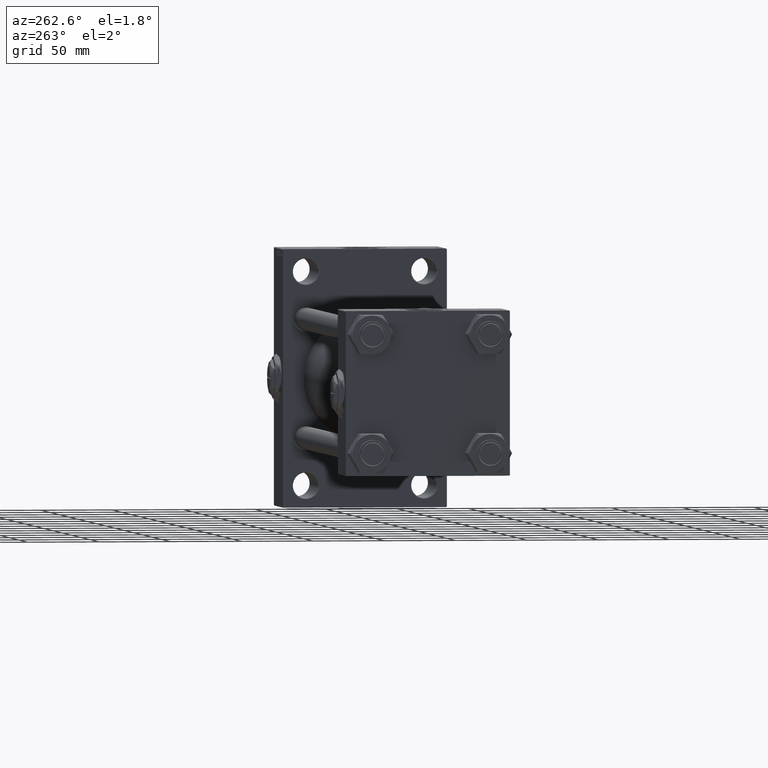
[diagram: clean part render]
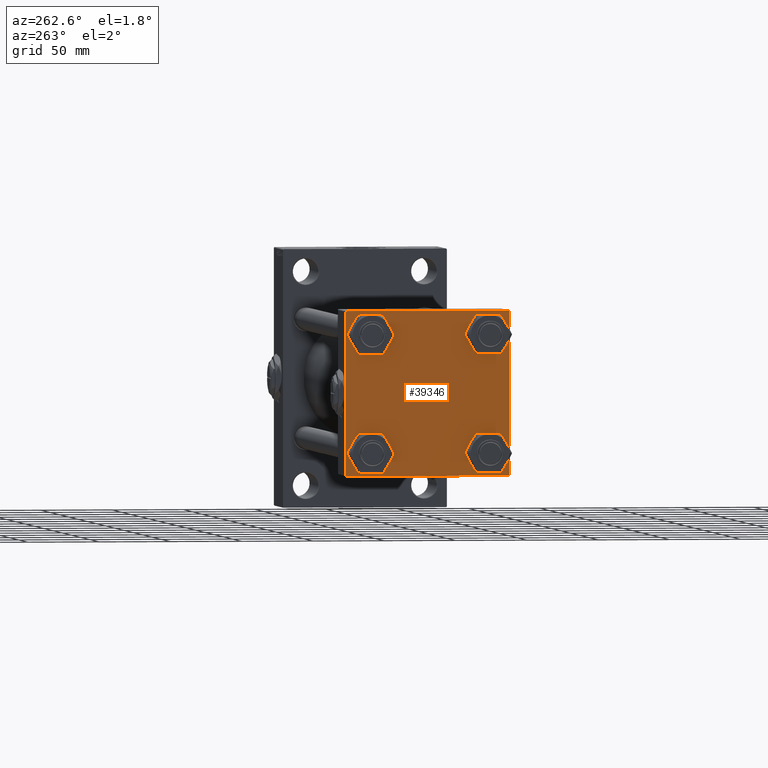
[diagram: same view with one face highlighted and labeled with its STEP entity id]
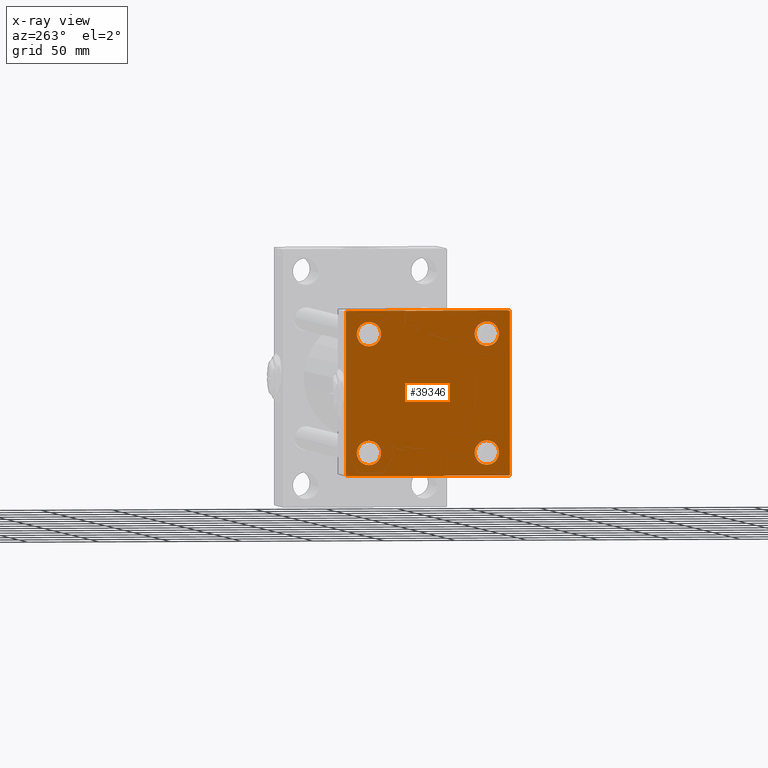
[diagram: x-ray of the same camera — body ghosted, the highlighted face saturated]
A machine part, auxiliary view. The second image highlights one B-rep face of the part: STEP entity #39346.
The next image is the same camera in x-ray: the body ghosted, the highlighted face saturated — about 0% of this face is hidden behind the body in this view.
In plain terms, the highlighted planar face has unit normal (-1, 0, 0).
Its self-contained STEP definition (entity closure, byte-faithful):
#49 = CARTESIAN_POINT ( 'NONE',  ( 0.000000000000000000, 57.24999999999922551, 57.25000000000081712 ) ) ;
#82 = VERTEX_POINT ( 'NONE', #12409 ) ;
#601 = CARTESIAN_POINT ( 'NONE',  ( 0.000000000000000000, 57.49999999999999289, 57.00000000000003553 ) ) ;
#662 = EDGE_CURVE ( 'NONE', #23062, #33924, #25557, .T. ) ;
#837 = DIRECTION ( 'NONE',  ( -0.000000000000000000, 0.7071067811865376918, 0.7071067811865573427 ) ) ;
#1007 = CARTESIAN_POINT ( 'NONE',  ( 0.000000000000000000, -57.50000000000000711, 57.49999999999999289 ) ) ;
#2153 = EDGE_LOOP ( 'NONE', ( #42011, #26590 ) ) ;
#2693 = VECTOR ( 'NONE', #36406, 1000.000000000000000 ) ;
#3112 = CARTESIAN_POINT ( 'NONE',  ( 0.000000000000000000, -57.00000000000003553, 57.49999999999999289 ) ) ;
#3179 = AXIS2_PLACEMENT_3D ( 'NONE', #24660, #27955, #17353 ) ;
#3202 = EDGE_CURVE ( 'NONE', #13354, #49717, #42679, .T. ) ;
#4260 = ORIENTED_EDGE ( 'NONE', *, *, #662, .T. ) ;
#4706 = PLANE ( 'NONE',  #23695 ) ;
#4889 = CARTESIAN_POINT ( 'NONE',  ( 0.000000000000000000, 57.25000000000081712, -57.24999999999922551 ) ) ;
#5319 = EDGE_CURVE ( 'NONE', #40228, #49717, #29425, .T. ) ;
#6830 = ORIENTED_EDGE ( 'NONE', *, *, #18655, .T. ) ;
#7414 = AXIS2_PLACEMENT_3D ( 'NONE', #44572, #10039, #40794 ) ;
#7602 = VECTOR ( 'NONE', #837, 1000.000000000000114 ) ;
#7765 = DIRECTION ( 'NONE',  ( 1.000000000000000000, -0.000000000000000000, 0.000000000000000000 ) ) ;
#8477 = EDGE_LOOP ( 'NONE', ( #37095, #28863, #4260, #6830, #36881, #37893, #32561, #49737 ) ) ;
#8502 = FACE_BOUND ( 'NONE', #39062, .T. ) ;
#8508 = EDGE_LOOP ( 'NONE', ( #44011, #32065 ) ) ;
#8606 = DIRECTION ( 'NONE',  ( 0.000000000000000000, 0.000000000000000000, 1.000000000000000000 ) ) ;
#9120 = ORIENTED_EDGE ( 'NONE', *, *, #24588, .T. ) ;
#10039 = DIRECTION ( 'NONE',  ( 1.000000000000000000, -0.000000000000000000, 0.000000000000000000 ) ) ;
#10225 = AXIS2_PLACEMENT_3D ( 'NONE', #25800, #14467, #29854 ) ;
#11226 = DIRECTION ( 'NONE',  ( 0.000000000000000000, 0.000000000000000000, 1.000000000000000000 ) ) ;
#11793 = CARTESIAN_POINT ( 'NONE',  ( 0.000000000000000000, -41.34999999999998721, -32.85000000000001563 ) ) ;
#12055 = FACE_BOUND ( 'NONE', #34598, .T. ) ;
#12189 = CARTESIAN_POINT ( 'NONE',  ( 0.000000000000000000, 41.34999999999999432, 41.35000000000000142 ) ) ;
#12301 = EDGE_CURVE ( 'NONE', #13354, #82, #20179, .T. ) ;
#12409 = CARTESIAN_POINT ( 'NONE',  ( 0.000000000000000000, -57.50000000000000711, -57.00000000000000711 ) ) ;
#12942 = CIRCLE ( 'NONE', #19401, 8.499999999999992895 ) ;
#12951 = VERTEX_POINT ( 'NONE', #45029 ) ;
#13193 = EDGE_CURVE ( 'NONE', #48087, #23062, #20540, .T. ) ;
#13222 = CARTESIAN_POINT ( 'NONE',  ( 0.000000000000000000, 57.49999999999999289, -57.49999999999999289 ) ) ;
#13354 = VERTEX_POINT ( 'NONE', #15645 ) ;
#13368 = CARTESIAN_POINT ( 'NONE',  ( 0.000000000000000000, 41.34999999999999432, 49.85000000000000142 ) ) ;
#14467 = DIRECTION ( 'NONE',  ( 1.000000000000000000, -0.000000000000000000, 0.000000000000000000 ) ) ;
#15212 = CARTESIAN_POINT ( 'NONE',  ( 0.000000000000000000, -41.34999999999998721, 32.85000000000001563 ) ) ;
#15435 = DIRECTION ( 'NONE',  ( 0.000000000000000000, 0.7071067811865573427, -0.7071067811865376918 ) ) ;
#15645 = CARTESIAN_POINT ( 'NONE',  ( 0.000000000000000000, -57.50000000000000711, 57.00000000000000711 ) ) ;
#15855 = CIRCLE ( 'NONE', #10225, 8.499999999999992895 ) ;
#16071 = CARTESIAN_POINT ( 'NONE',  ( 0.000000000000000000, 0.000000000000000000, 0.000000000000000000 ) ) ;
#16480 = ORIENTED_EDGE ( 'NONE', *, *, #18651, .T. ) ;
#16649 = CIRCLE ( 'NONE', #19850, 8.499999999999992895 ) ;
#17353 = DIRECTION ( 'NONE',  ( 0.000000000000000000, 0.000000000000000000, 1.000000000000000000 ) ) ;
#18334 = VECTOR ( 'NONE', #20286, 1000.000000000000114 ) ;
#18651 = EDGE_CURVE ( 'NONE', #12951, #23550, #49865, .T. ) ;
#18655 = EDGE_CURVE ( 'NONE', #33924, #82, #32732, .T. ) ;
#18741 = VERTEX_POINT ( 'NONE', #31428 ) ;
#18980 = CARTESIAN_POINT ( 'NONE',  ( 0.000000000000000000, 57.49999999999999289, 57.50000000000000711 ) ) ;
#19227 = LINE ( 'NONE', #49, #41762 ) ;
#19380 = VERTEX_POINT ( 'NONE', #24413 ) ;
#19401 = AXIS2_PLACEMENT_3D ( 'NONE', #12189, #44415, #40389 ) ;
#19850 = AXIS2_PLACEMENT_3D ( 'NONE', #42473, #31395, #11226 ) ;
#20114 = CARTESIAN_POINT ( 'NONE',  ( 0.000000000000000000, 41.34999999999999432, 41.35000000000000142 ) ) ;
#20175 = EDGE_CURVE ( 'NONE', #38536, #18741, #23396, .T. ) ;
#20179 = LINE ( 'NONE', #1007, #46444 ) ;
#20187 = AXIS2_PLACEMENT_3D ( 'NONE', #41953, #49264, #26830 ) ;
#20286 = DIRECTION ( 'NONE',  ( -0.000000000000000000, -0.7071067811865376918, -0.7071067811865573427 ) ) ;
#20355 = FACE_BOUND ( 'NONE', #2153, .T. ) ;
#20540 = LINE ( 'NONE', #4889, #18334 ) ;
#20712 = CARTESIAN_POINT ( 'NONE',  ( 0.000000000000000000, -41.34999999999998721, -41.35000000000000853 ) ) ;
#21360 = DIRECTION ( 'NONE',  ( 0.000000000000000000, -1.000000000000000000, -1.206764157201257045E-16 ) ) ;
#21450 = EDGE_CURVE ( 'NONE', #23166, #38460, #38853, .T. ) ;
#21760 = AXIS2_PLACEMENT_3D ( 'NONE', #20712, #36086, #8606 ) ;
#23062 = VERTEX_POINT ( 'NONE', #36910 ) ;
#23166 = VERTEX_POINT ( 'NONE', #15212 ) ;
#23396 = CIRCLE ( 'NONE', #21760, 8.499999999999992895 ) ;
#23550 = VERTEX_POINT ( 'NONE', #28447 ) ;
#23695 = AXIS2_PLACEMENT_3D ( 'NONE', #16071, #31463, #46797 ) ;
#24413 = CARTESIAN_POINT ( 'NONE',  ( 0.000000000000000000, 41.34999999999999432, 32.85000000000000853 ) ) ;
#24588 = EDGE_CURVE ( 'NONE', #23550, #12951, #34645, .T. ) ;
#24660 = CARTESIAN_POINT ( 'NONE',  ( 0.000000000000000000, 41.34999999999999432, -41.35000000000000142 ) ) ;
#25557 = LINE ( 'NONE', #13222, #2693 ) ;
#25800 = CARTESIAN_POINT ( 'NONE',  ( 0.000000000000000000, -41.34999999999998721, 41.35000000000000853 ) ) ;
#26590 = ORIENTED_EDGE ( 'NONE', *, *, #21450, .T. ) ;
#26830 = DIRECTION ( 'NONE',  ( 0.000000000000000000, 0.000000000000000000, 1.000000000000000000 ) ) ;
#27347 = VECTOR ( 'NONE', #48085, 1000.000000000000114 ) ;
#27644 = ORIENTED_EDGE ( 'NONE', *, *, #32091, .T. ) ;
#27681 = DIRECTION ( 'NONE',  ( 0.000000000000000000, 0.000000000000000000, 1.000000000000000000 ) ) ;
#27955 = DIRECTION ( 'NONE',  ( 1.000000000000000000, -0.000000000000000000, 0.000000000000000000 ) ) ;
#28110 = EDGE_CURVE ( 'NONE', #49512, #19380, #12942, .T. ) ;
#28447 = CARTESIAN_POINT ( 'NONE',  ( 0.000000000000000000, 41.34999999999999432, -49.85000000000000142 ) ) ;
#28863 = ORIENTED_EDGE ( 'NONE', *, *, #13193, .T. ) ;
#29425 = LINE ( 'NONE', #40015, #40662 ) ;
#29854 = DIRECTION ( 'NONE',  ( 0.000000000000000000, 0.000000000000000000, 1.000000000000000000 ) ) ;
#30498 = EDGE_CURVE ( 'NONE', #47128, #48087, #41902, .T. ) ;
#31395 = DIRECTION ( 'NONE',  ( 1.000000000000000000, -0.000000000000000000, 0.000000000000000000 ) ) ;
#31428 = CARTESIAN_POINT ( 'NONE',  ( 0.000000000000000000, -41.34999999999998721, -49.85000000000000853 ) ) ;
#31463 = DIRECTION ( 'NONE',  ( -1.000000000000000000, 0.000000000000000000, -0.000000000000000000 ) ) ;
#32065 = ORIENTED_EDGE ( 'NONE', *, *, #45430, .T. ) ;
#32091 = EDGE_CURVE ( 'NONE', #19380, #49512, #49269, .T. ) ;
#32561 = ORIENTED_EDGE ( 'NONE', *, *, #5319, .F. ) ;
#32732 = LINE ( 'NONE', #40038, #27347 ) ;
#33486 = CARTESIAN_POINT ( 'NONE',  ( 0.000000000000000000, -41.34999999999998721, 49.85000000000000853 ) ) ;
#33924 = VERTEX_POINT ( 'NONE', #42390 ) ;
#34001 = AXIS2_PLACEMENT_3D ( 'NONE', #20114, #7765, #27681 ) ;
#34598 = EDGE_LOOP ( 'NONE', ( #45626, #27644 ) ) ;
#34645 = CIRCLE ( 'NONE', #20187, 8.499999999999992895 ) ;
#35552 = VECTOR ( 'NONE', #49711, 1000.000000000000000 ) ;
#36086 = DIRECTION ( 'NONE',  ( 1.000000000000000000, -0.000000000000000000, 0.000000000000000000 ) ) ;
#36406 = DIRECTION ( 'NONE',  ( 0.000000000000000000, -1.000000000000000000, -1.206764157201257045E-16 ) ) ;
#36881 = ORIENTED_EDGE ( 'NONE', *, *, #12301, .F. ) ;
#36910 = CARTESIAN_POINT ( 'NONE',  ( 0.000000000000000000, 57.00000000000002132, -57.49999999999999289 ) ) ;
#37095 = ORIENTED_EDGE ( 'NONE', *, *, #30498, .T. ) ;
#37893 = ORIENTED_EDGE ( 'NONE', *, *, #3202, .T. ) ;
#38460 = VERTEX_POINT ( 'NONE', #33486 ) ;
#38536 = VERTEX_POINT ( 'NONE', #11793 ) ;
#38853 = CIRCLE ( 'NONE', #7414, 8.499999999999992895 ) ;
#39062 = EDGE_LOOP ( 'NONE', ( #16480, #9120 ) ) ;
#39080 = CARTESIAN_POINT ( 'NONE',  ( 0.000000000000000000, 57.00000000000000711, 57.50000000000000711 ) ) ;
#39083 = DIRECTION ( 'NONE',  ( 0.000000000000000000, 0.000000000000000000, -1.000000000000000000 ) ) ;
#39346 = ADVANCED_FACE ( 'NONE', ( #20355, #39509, #8502, #12055, #39753 ), #4706, .T. ) ;
#39509 = FACE_BOUND ( 'NONE', #8508, .T. ) ;
#39753 = FACE_OUTER_BOUND ( 'NONE', #8477, .T. ) ;
#40015 = CARTESIAN_POINT ( 'NONE',  ( 0.000000000000000000, 57.49999999999999289, 57.50000000000000711 ) ) ;
#40038 = CARTESIAN_POINT ( 'NONE',  ( 0.000000000000000000, -57.25000000000000711, -57.25000000000000711 ) ) ;
#40228 = VERTEX_POINT ( 'NONE', #39080 ) ;
#40389 = DIRECTION ( 'NONE',  ( 0.000000000000000000, 0.000000000000000000, 1.000000000000000000 ) ) ;
#40662 = VECTOR ( 'NONE', #21360, 1000.000000000000000 ) ;
#40794 = DIRECTION ( 'NONE',  ( 0.000000000000000000, 0.000000000000000000, 1.000000000000000000 ) ) ;
#41142 = CARTESIAN_POINT ( 'NONE',  ( 0.000000000000000000, 57.49999999999999289, -57.00000000000000711 ) ) ;
#41762 = VECTOR ( 'NONE', #15435, 1000.000000000000114 ) ;
#41902 = LINE ( 'NONE', #18980, #35552 ) ;
#41953 = CARTESIAN_POINT ( 'NONE',  ( 0.000000000000000000, 41.34999999999999432, -41.35000000000000142 ) ) ;
#42011 = ORIENTED_EDGE ( 'NONE', *, *, #45664, .T. ) ;
#42390 = CARTESIAN_POINT ( 'NONE',  ( 0.000000000000000000, -57.00000000000000711, -57.50000000000000711 ) ) ;
#42438 = CARTESIAN_POINT ( 'NONE',  ( -0.000000000000000000, -57.25000000000081712, 57.24999999999922551 ) ) ;
#42473 = CARTESIAN_POINT ( 'NONE',  ( 0.000000000000000000, -41.34999999999998721, -41.35000000000000853 ) ) ;
#42679 = LINE ( 'NONE', #42438, #7602 ) ;
#44011 = ORIENTED_EDGE ( 'NONE', *, *, #20175, .T. ) ;
#44415 = DIRECTION ( 'NONE',  ( 1.000000000000000000, -0.000000000000000000, 0.000000000000000000 ) ) ;
#44572 = CARTESIAN_POINT ( 'NONE',  ( 0.000000000000000000, -41.34999999999998721, 41.35000000000000853 ) ) ;
#45029 = CARTESIAN_POINT ( 'NONE',  ( 0.000000000000000000, 41.34999999999999432, -32.85000000000000853 ) ) ;
#45430 = EDGE_CURVE ( 'NONE', #18741, #38536, #16649, .T. ) ;
#45626 = ORIENTED_EDGE ( 'NONE', *, *, #28110, .T. ) ;
#45664 = EDGE_CURVE ( 'NONE', #38460, #23166, #15855, .T. ) ;
#46444 = VECTOR ( 'NONE', #39083, 1000.000000000000000 ) ;
#46797 = DIRECTION ( 'NONE',  ( -0.000000000000000000, 0.000000000000000000, 1.000000000000000000 ) ) ;
#47128 = VERTEX_POINT ( 'NONE', #601 ) ;
#48085 = DIRECTION ( 'NONE',  ( 0.000000000000000000, -0.7071067811865474617, 0.7071067811865474617 ) ) ;
#48087 = VERTEX_POINT ( 'NONE', #41142 ) ;
#48279 = EDGE_CURVE ( 'NONE', #40228, #47128, #19227, .T. ) ;
#49264 = DIRECTION ( 'NONE',  ( 1.000000000000000000, -0.000000000000000000, 0.000000000000000000 ) ) ;
#49269 = CIRCLE ( 'NONE', #34001, 8.499999999999992895 ) ;
#49512 = VERTEX_POINT ( 'NONE', #13368 ) ;
#49711 = DIRECTION ( 'NONE',  ( 0.000000000000000000, 0.000000000000000000, -1.000000000000000000 ) ) ;
#49717 = VERTEX_POINT ( 'NONE', #3112 ) ;
#49737 = ORIENTED_EDGE ( 'NONE', *, *, #48279, .T. ) ;
#49865 = CIRCLE ( 'NONE', #3179, 8.499999999999992895 ) ;